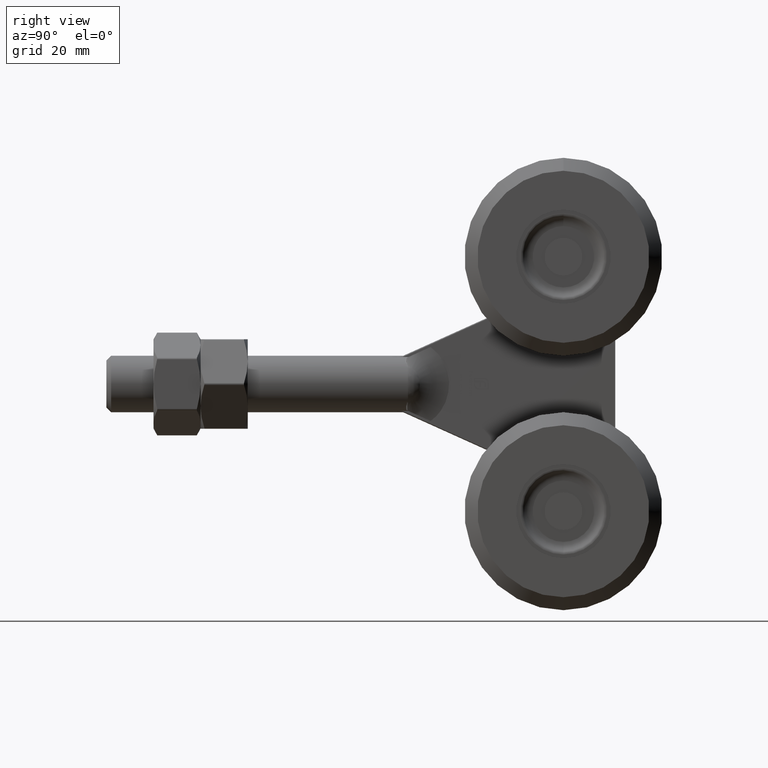
[diagram: clean part render]
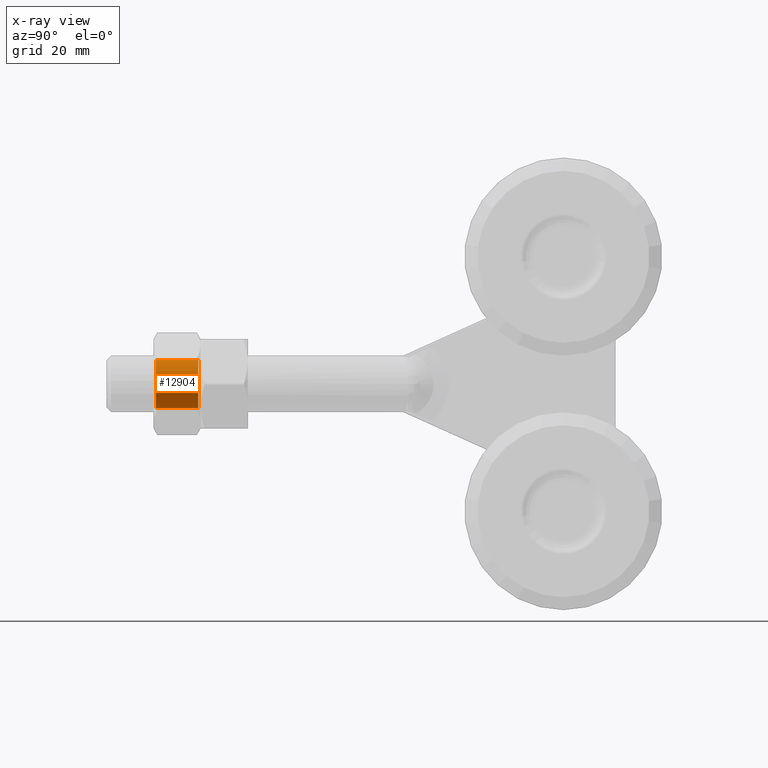
[diagram: x-ray — body ghosted, one internal face saturated and labeled with its STEP entity id]
A machine part, right view, then the same camera in x-ray: the body is ghosted and one INTERNAL B-rep face — a face not visible from any outside direction — is saturated and labeled: STEP entity #12904.
In plain terms, the highlighted cylindrical surface (bore or boss wall) has radius 5.1 mm, axis along (0, 1, 0).
Its self-contained STEP definition (entity closure, byte-faithful):
#477 = CARTESIAN_POINT ( 'NONE',  ( 0.000000000000000000, -4.499999999999996447, 5.099999999999996980 ) ) ;
#796 = DIRECTION ( 'NONE',  ( -0.000000000000000000, -1.000000000000000000, -0.000000000000000000 ) ) ;
#3551 = AXIS2_PLACEMENT_3D ( 'NONE', #14429, #14573, #10045 ) ;
#3623 = CIRCLE ( 'NONE', #10020, 5.099999999999996980 ) ;
#5217 = ORIENTED_EDGE ( 'NONE', *, *, #9757, .T. ) ;
#5247 = CARTESIAN_POINT ( 'NONE',  ( 0.000000000000000000, 4.500000000000000000, 0.000000000000000000 ) ) ;
#6735 = VERTEX_POINT ( 'NONE', #477 ) ;
#9757 = EDGE_CURVE ( 'NONE', #6735, #6735, #3623, .T. ) ;
#10020 = AXIS2_PLACEMENT_3D ( 'NONE', #17664, #796, #10086 ) ;
#10045 = DIRECTION ( 'NONE',  ( 0.000000000000000000, 0.000000000000000000, 1.000000000000000000 ) ) ;
#10086 = DIRECTION ( 'NONE',  ( 0.000000000000000000, 0.000000000000000000, 1.000000000000000000 ) ) ;
#10286 = DIRECTION ( 'NONE',  ( 0.000000000000000000, 1.000000000000000000, 0.000000000000000000 ) ) ;
#10366 = CIRCLE ( 'NONE', #15560, 5.099999999999996980 ) ;
#10685 = FACE_OUTER_BOUND ( 'NONE', #16900, .T. ) ;
#10907 = FACE_OUTER_BOUND ( 'NONE', #12330, .T. ) ;
#11045 = CARTESIAN_POINT ( 'NONE',  ( 0.000000000000000000, 4.500000000000000000, 5.099999999999996980 ) ) ;
#11610 = DIRECTION ( 'NONE',  ( 0.000000000000000000, 0.000000000000000000, 1.000000000000000000 ) ) ;
#12330 = EDGE_LOOP ( 'NONE', ( #15451 ) ) ;
#12904 = ADVANCED_FACE ( 'NONE', ( #10907, #10685 ), #17352, .F. ) ;
#14429 = CARTESIAN_POINT ( 'NONE',  ( 0.000000000000000000, 5.000000000000000000, 0.000000000000000000 ) ) ;
#14573 = DIRECTION ( 'NONE',  ( -0.000000000000000000, 1.000000000000000000, -0.000000000000000000 ) ) ;
#15451 = ORIENTED_EDGE ( 'NONE', *, *, #16292, .T. ) ;
#15560 = AXIS2_PLACEMENT_3D ( 'NONE', #5247, #10286, #11610 ) ;
#16292 = EDGE_CURVE ( 'NONE', #19086, #19086, #10366, .T. ) ;
#16900 = EDGE_LOOP ( 'NONE', ( #5217 ) ) ;
#17352 = CYLINDRICAL_SURFACE ( 'NONE', #3551, 5.099999999999996980 ) ;
#17664 = CARTESIAN_POINT ( 'NONE',  ( 0.000000000000000000, -4.499999999999996447, 0.000000000000000000 ) ) ;
#19086 = VERTEX_POINT ( 'NONE', #11045 ) ;